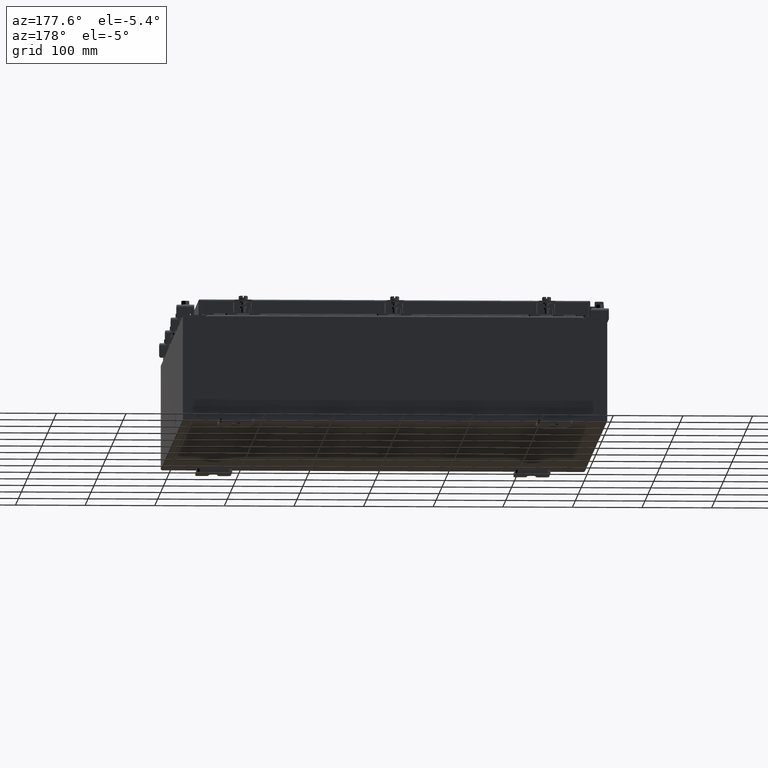
[diagram: clean part render]
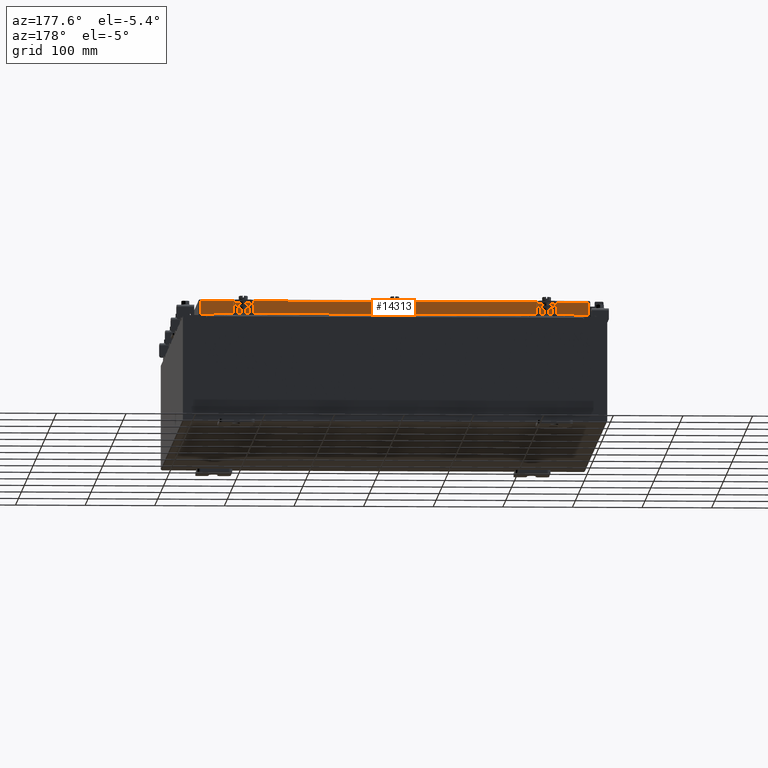
[diagram: same view with one face highlighted and labeled with its STEP entity id]
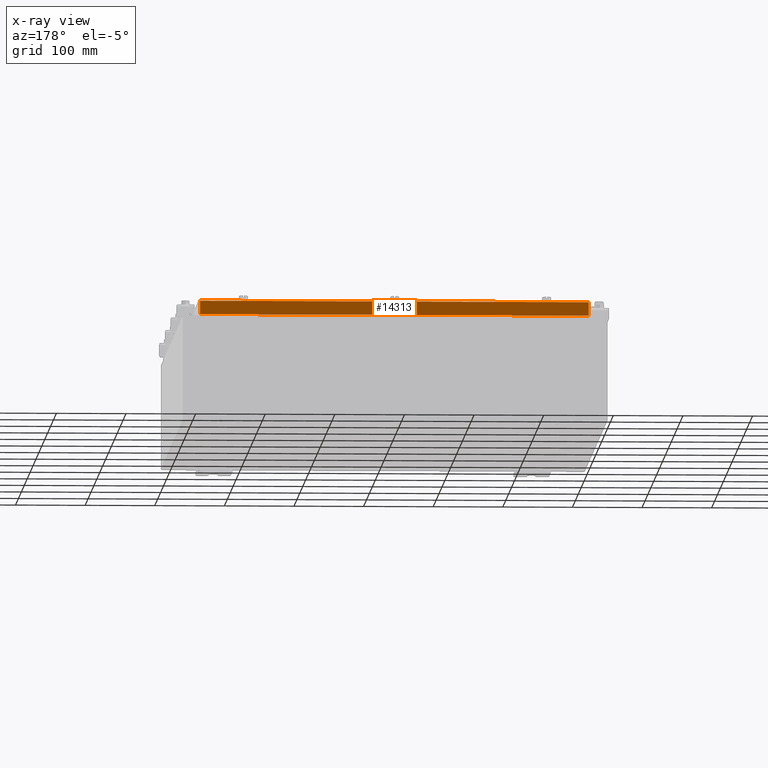
[diagram: x-ray of the same camera — body ghosted, the highlighted face saturated]
A machine part, auxiliary view. The second image highlights one B-rep face of the part: STEP entity #14313.
The next image is the same camera in x-ray: the body ghosted, the highlighted face saturated — about 0% of this face is hidden behind the body in this view.
In plain terms, the highlighted planar face has unit normal (0, -1, -0).
Its self-contained STEP definition (entity closure, byte-faithful):
#1559 = LINE ( 'NONE', #4270, #15239 ) ;
#1911 = VECTOR ( 'NONE', #22605, 39.37007874015748100 ) ;
#2230 = DIRECTION ( 'NONE',  ( 0.0000000000000000000, 2.818880942772350300E-015, -1.000000000000000000 ) ) ;
#2274 = CARTESIAN_POINT ( 'NONE',  ( -11.07799999999999900, 14.09400000000000100, -0.8500000000000024200 ) ) ;
#3384 = CARTESIAN_POINT ( 'NONE',  ( 10.98915786437626900, 14.09399999999999900, 3.999012166344507700E-014 ) ) ;
#3554 = VERTEX_POINT ( 'NONE', #14815 ) ;
#3591 = EDGE_CURVE ( 'NONE', #18056, #22623, #1559, .T. ) ;
#4059 = DIRECTION ( 'NONE',  ( 1.000000000000000000, -4.379057701015054300E-047, 1.233005954894504400E-016 ) ) ;
#4270 = CARTESIAN_POINT ( 'NONE',  ( -11.07799999999999900, 14.09400000000000100, -0.8500000000000024200 ) ) ;
#4625 = EDGE_CURVE ( 'NONE', #10866, #18056, #17423, .T. ) ;
#4888 = VECTOR ( 'NONE', #15869, 39.37007874015748100 ) ;
#5627 = EDGE_CURVE ( 'NONE', #15732, #10866, #6657, .T. ) ;
#6116 = FACE_OUTER_BOUND ( 'NONE', #15895, .T. ) ;
#6657 = LINE ( 'NONE', #11884, #1911 ) ;
#6979 = ORIENTED_EDGE ( 'NONE', *, *, #4625, .F. ) ;
#8678 = DIRECTION ( 'NONE',  ( 1.000000000000000000, -0.0000000000000000000, -0.0000000000000000000 ) ) ;
#8713 = EDGE_CURVE ( 'NONE', #15732, #20127, #9055, .T. ) ;
#9055 = LINE ( 'NONE', #3384, #4888 ) ;
#10331 = ORIENTED_EDGE ( 'NONE', *, *, #5627, .F. ) ;
#10662 = EDGE_CURVE ( 'NONE', #3554, #20127, #17923, .T. ) ;
#10866 = VERTEX_POINT ( 'NONE', #15204 ) ;
#11029 = CARTESIAN_POINT ( 'NONE',  ( -4.898647335700341400E-030, 14.09399999999999900, 3.999012166344507700E-014 ) ) ;
#11791 = CARTESIAN_POINT ( 'NONE',  ( 10.98915786437626700, 14.09400000000000100, -0.8499999999999996400 ) ) ;
#11884 = CARTESIAN_POINT ( 'NONE',  ( -11.07799999999999900, 14.09399999999999900, -0.08770000000000007000 ) ) ;
#12131 = CARTESIAN_POINT ( 'NONE',  ( -10.23915786437626700, 14.09399999999999900, -0.8500000000000033100 ) ) ;
#12231 = CARTESIAN_POINT ( 'NONE',  ( -10.98915786437626900, 14.09399999999999900, -0.07469999999999978000 ) ) ;
#12679 = VECTOR ( 'NONE', #21218, 39.37007874015748100 ) ;
#12902 = DIRECTION ( 'NONE',  ( 3.475696988576941300E-031, -1.000000000000000000, -2.818880942772350300E-015 ) ) ;
#13007 = VECTOR ( 'NONE', #8678, 39.37007874015748100 ) ;
#14313 = ADVANCED_FACE ( 'NONE', ( #6116 ), #21755, .F. ) ;
#14815 = CARTESIAN_POINT ( 'NONE',  ( 10.23915786437626700, 14.09399999999999900, -0.8500000000000033100 ) ) ;
#15204 = CARTESIAN_POINT ( 'NONE',  ( -10.98915786437626700, 14.09399999999999900, -0.08770000000000007000 ) ) ;
#15239 = VECTOR ( 'NONE', #22096, 39.37007874015748100 ) ;
#15732 = VERTEX_POINT ( 'NONE', #16395 ) ;
#15769 = CARTESIAN_POINT ( 'NONE',  ( -10.23915786437626700, 14.09399999999999900, -0.8500000000000033100 ) ) ;
#15869 = DIRECTION ( 'NONE',  ( 0.0000000000000000000, 2.818880942772350300E-015, -1.000000000000000000 ) ) ;
#15895 = EDGE_LOOP ( 'NONE', ( #10331, #16039, #19834, #20716, #19051, #6979 ) ) ;
#16039 = ORIENTED_EDGE ( 'NONE', *, *, #8713, .T. ) ;
#16395 = CARTESIAN_POINT ( 'NONE',  ( 10.98915786437626700, 14.09399999999999900, -0.08770000000000007000 ) ) ;
#17260 = CARTESIAN_POINT ( 'NONE',  ( -10.98915786437626900, 14.09400000000000100, -0.8500000000000024200 ) ) ;
#17423 = LINE ( 'NONE', #12231, #12679 ) ;
#17756 = LINE ( 'NONE', #15769, #13007 ) ;
#17923 = LINE ( 'NONE', #2274, #22688 ) ;
#18056 = VERTEX_POINT ( 'NONE', #17260 ) ;
#18169 = EDGE_CURVE ( 'NONE', #22623, #3554, #17756, .T. ) ;
#19051 = ORIENTED_EDGE ( 'NONE', *, *, #3591, .F. ) ;
#19788 = AXIS2_PLACEMENT_3D ( 'NONE', #11029, #12902, #2230 ) ;
#19834 = ORIENTED_EDGE ( 'NONE', *, *, #10662, .F. ) ;
#20127 = VERTEX_POINT ( 'NONE', #11791 ) ;
#20716 = ORIENTED_EDGE ( 'NONE', *, *, #18169, .F. ) ;
#21218 = DIRECTION ( 'NONE',  ( -0.0000000000000000000, 2.818880942772350300E-015, -1.000000000000000000 ) ) ;
#21755 = PLANE ( 'NONE',  #19788 ) ;
#22096 = DIRECTION ( 'NONE',  ( 1.000000000000000000, -4.379057701015054300E-047, 1.233005954894504400E-016 ) ) ;
#22605 = DIRECTION ( 'NONE',  ( -1.000000000000000000, -3.475696988576942200E-031, -9.473942235605600700E-046 ) ) ;
#22623 = VERTEX_POINT ( 'NONE', #12131 ) ;
#22688 = VECTOR ( 'NONE', #4059, 39.37007874015748100 ) ;